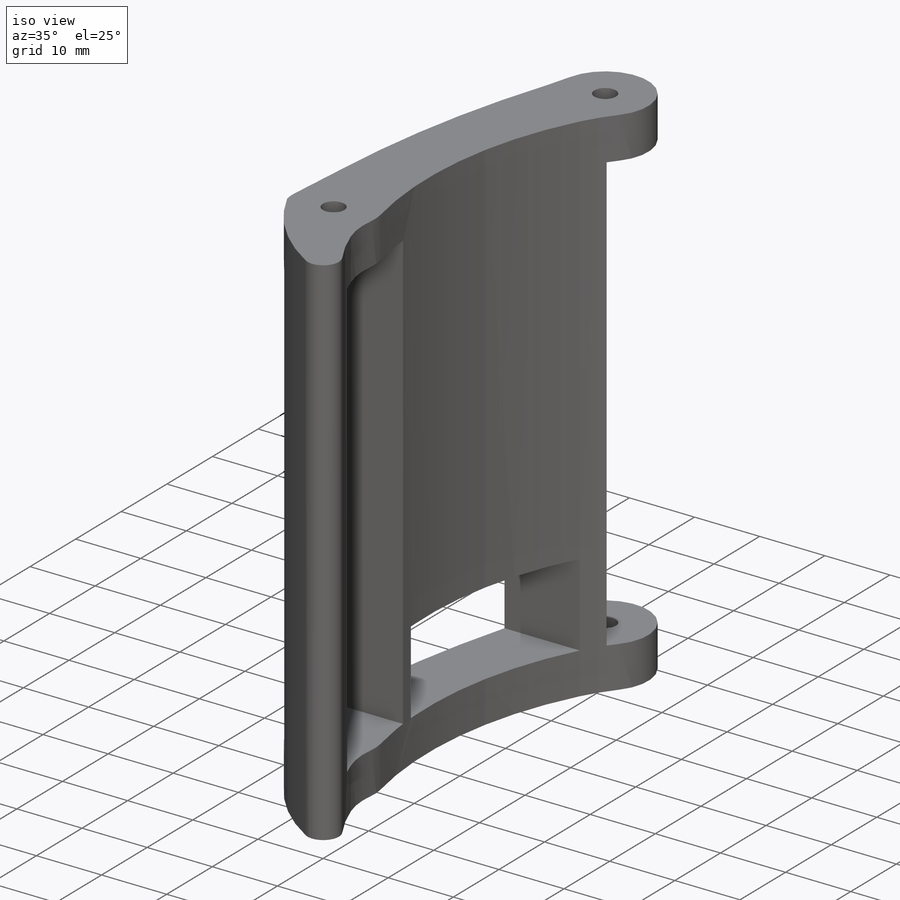
[diagram: iso view]
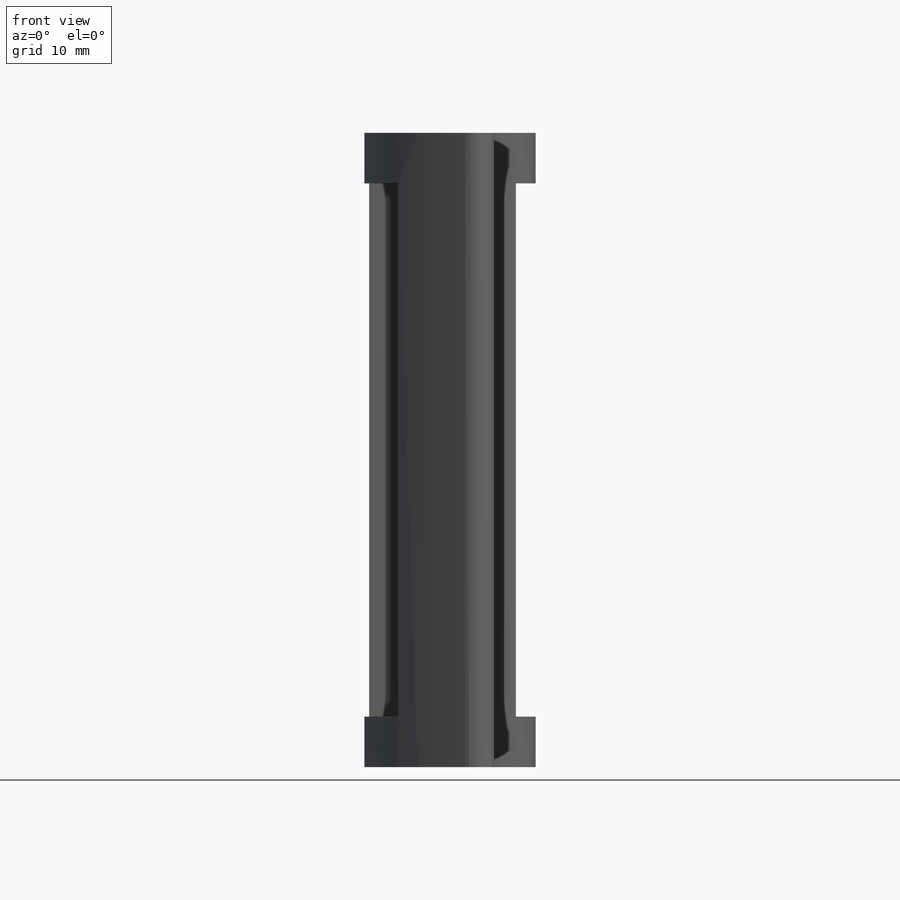
[diagram: front view]
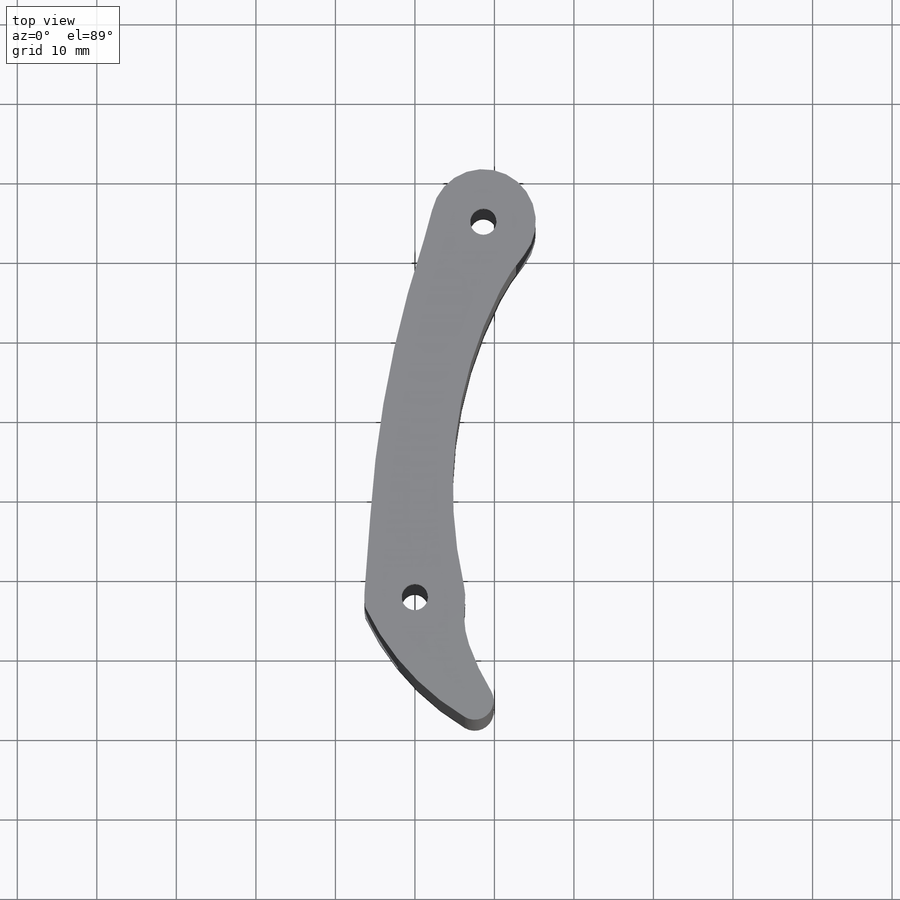
[diagram: top view]
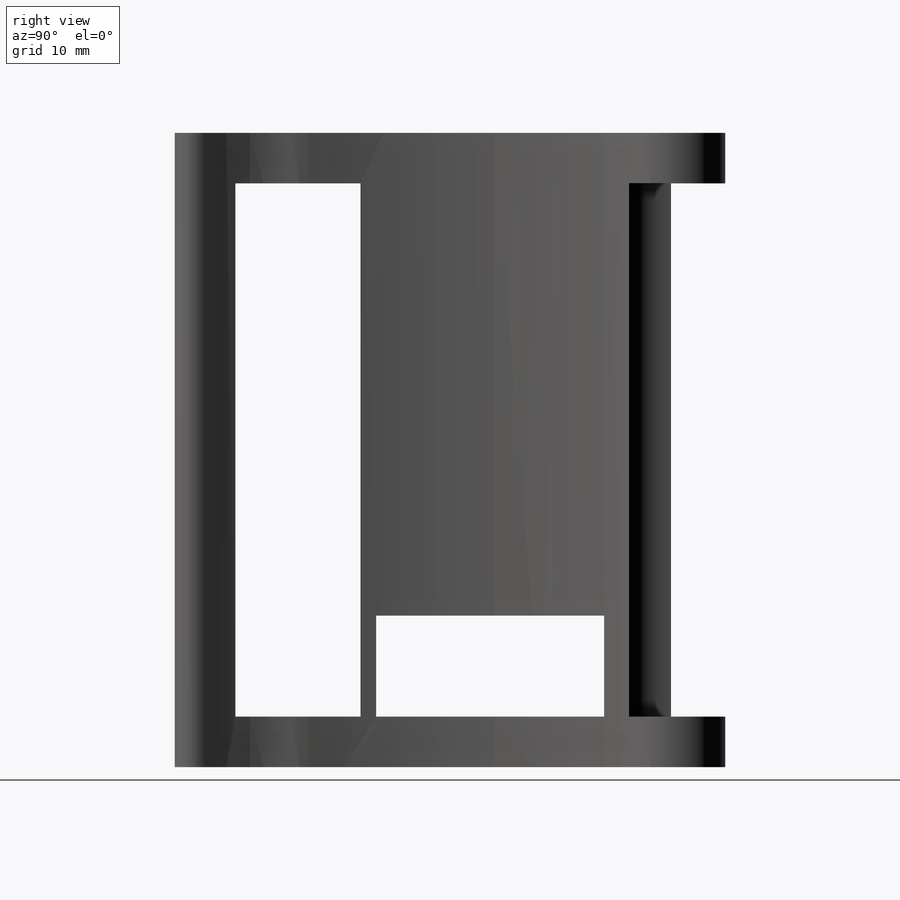
[diagram: right view]
SOLIDWORKS PART (.sldprt)
format: sldprt  version: not decoded by parser v0  size: 180,224 bytes
history: native  units: mm
features: sketch x3, cut_extrude x2, material x1, extrude x1, plane x1 (+11 scaffold rows collapsed)
feature tree (19):
  scaffold x11  (default folders/planes/origin — collapsed)
  material  "Material <not specified>"
  sketch  "Sketch1"  dims[c1.D1=5.334mm c1.D2=6.35mm c1.D3=5.334mm c1.D4=12.7mm c1.D5=12.7mm c2.D1=12.7mm c2.D5=12.7mm c2.D6=3.302mm c3.D1=12.7mm c3.D2=6.35mm c3.D3=13.208mm c4.D2=3.302mm c4.D3=20.32mm]
  extrude  "Boss-Extrude1"  Depth=79.756mm
  plane  "Plane1"  Offset=6.35mm
  sketch  "Sketch3"  dims[D1=13.716mm D2=13.97mm]
  cut_extrude  "Cut-Extrude2"  Depth=67.056mm
  sketch  "Sketch4"
  cut_extrude  "Cut-Extrude3"  Depth=12.7mm
decode coverage: 5 of 6 modeling features carry decoded parameters
note: suppression state not decoded; provenance and decode notes live in map.json
